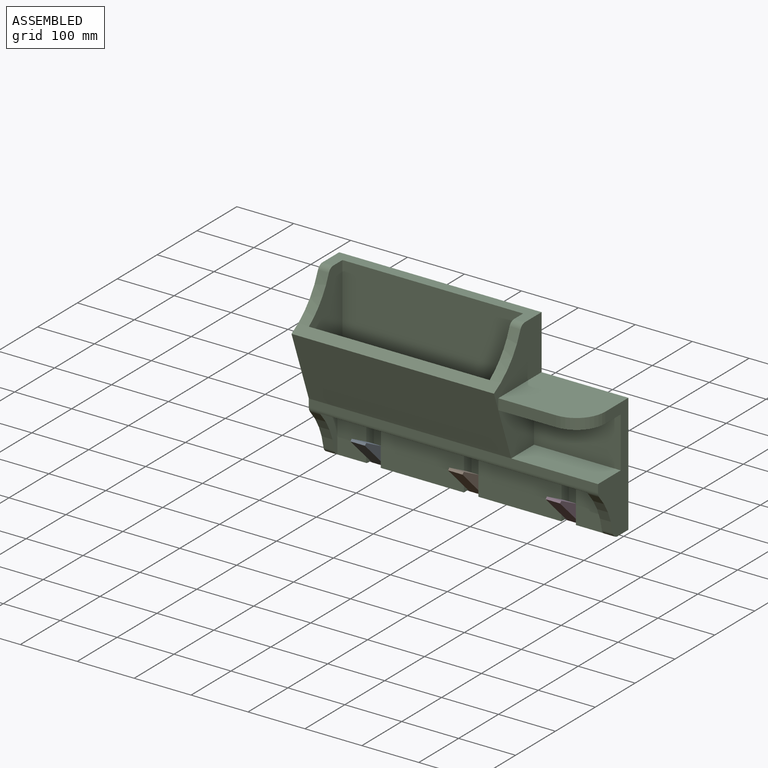
[diagram: assembled view]
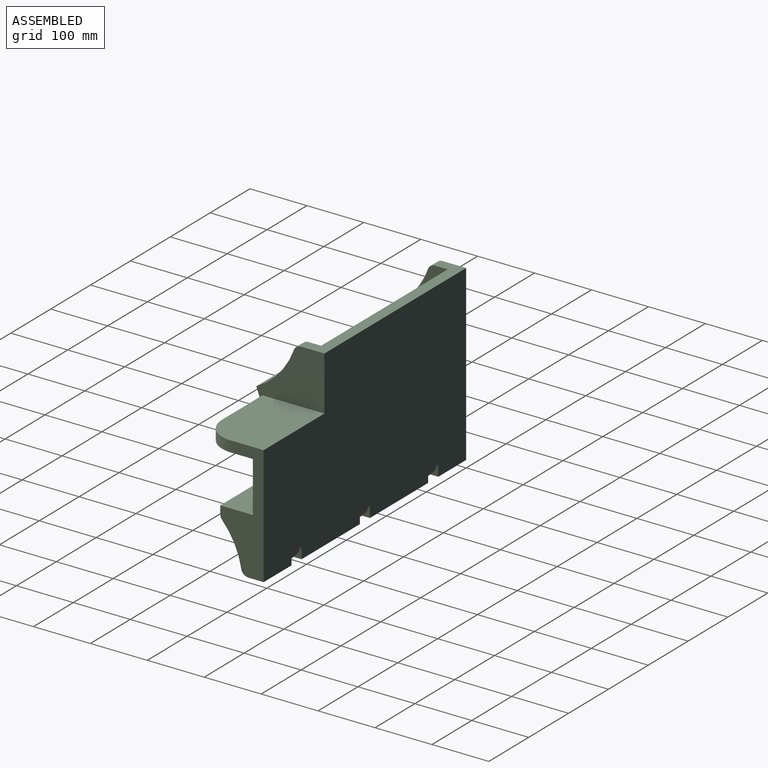
[diagram: assembled view, second angle]
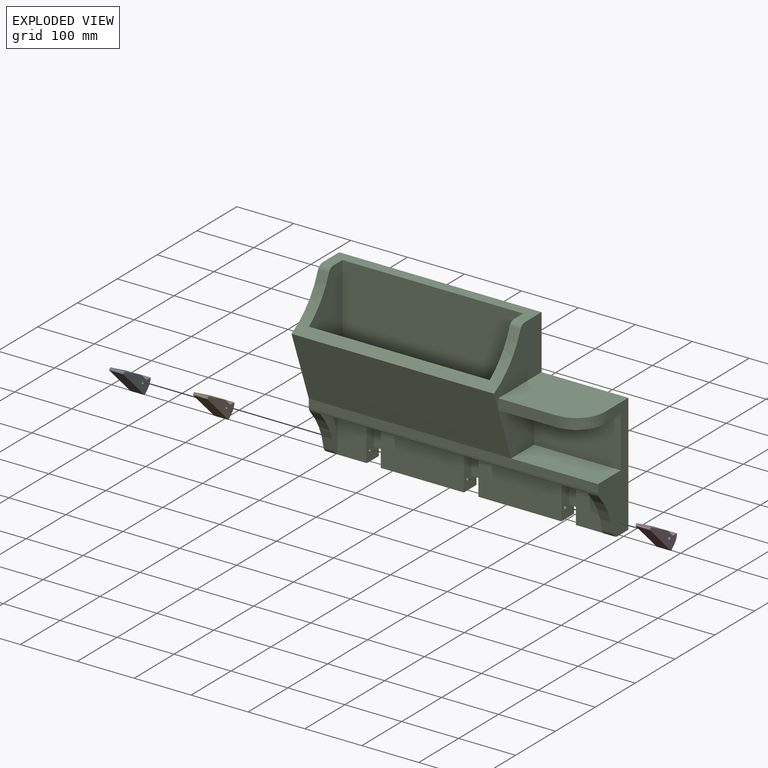
[diagram: exploded view]
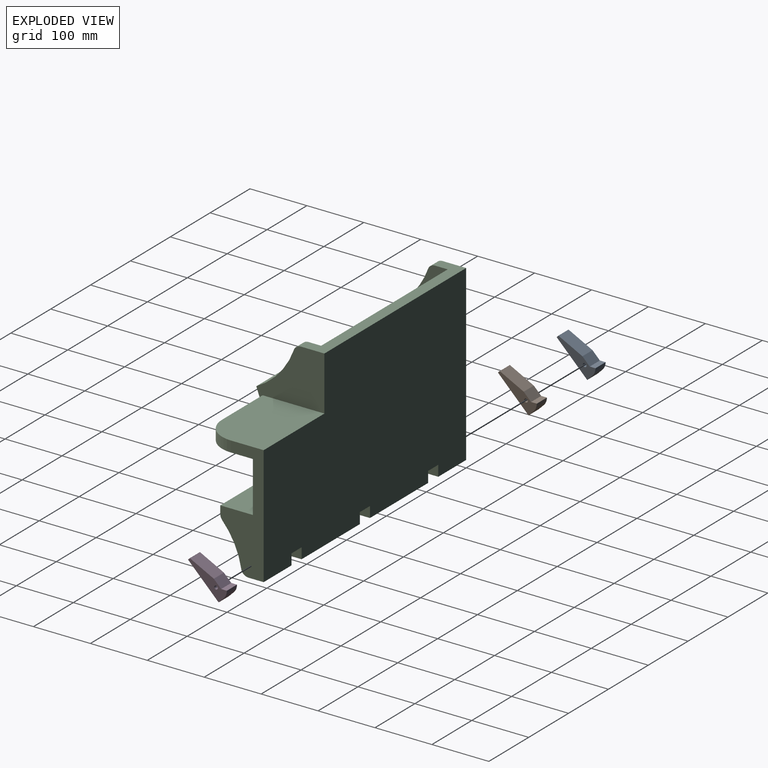
[diagram: exploded view, second angle]
ASSEMBLY  parts=4 mates=3
PART A: 10 faces, bbox 25.4x26.2x75.9 mm
  f0: plane 25.4x7.12mm, normal (0,0.71,0.71), area 255.8mm2, adj f1,f6,f8,f9
  f1: plane 25.4x18.22mm, normal (0,1,0), area 462.9mm2, adj f0,f2,f8,f9
  f2: plane 45.02x25.4mm, normal (0,0.95,0.31), area 1202.5mm2, adj f1,f3,f8,f9
  f3: plane 25.4x4.41mm, normal (0,0,1), area 112.1mm2, adj f2,f4,f8,f9
  f4: plane 75.95x25.4mm, normal (0,-1,0), area 1929mm2, adj f3,f5,f8,f9
  f5: plane 25.4x12.7mm, normal (0,0,-1), area 322.6mm2, adj f4,f6,f8,f9
  f6: cylinder r=19.05mm len=25.4mm, axis (-1,0,0), area 380mm2, adj f0,f5,f8,f9
  f7: cylinder r=3.17mm len=25.4mm, axis (-1,0,0), area 506.7mm2, adj f8,f9
  f8: plane 75.95x26.17mm, normal (1,0,0), area 1127.3mm2, adj f0,f1,f2,f3,f4,f5,f6,f7
  f9: plane 75.95x26.17mm, normal (-1,0,0), area 1127.3mm2, adj f0,f1,f2,f3,f4,f5,f6,f7
PART B: same geometry as A
PART C: 56 faces, bbox 508x119.6x304.8 mm
  f0: plane 469.9x82.55mm, normal (0,-1,0), area 32886mm2, adj f2,f3,f26,f27,f28,f30,f31,f33
  f1: plane 69.85x26.9mm, normal (0,0,-1), area 1878.9mm2, adj f4,f11,f36,f52
  f2: plane 146.05x31.75mm, normal (0,0,-1), area 4637.1mm2, adj f0,f4,f34,f37
  f3: plane 146.05x31.75mm, normal (0,0,-1), area 4637.1mm2, adj f0,f4,f30,f33
  f4: plane 508x304.8mm, normal (0,1,0), area 138870.7mm2, adj f1,f2,f3,f7,f9,f11,f20,f21
  f5: cylinder r=133.23mm len=68.42mm, axis (-1,0,0), area 1471mm2, adj f21,f28,f51,f53
  f6: plane 89.51x88.9mm, normal (1,0,0), area 6518.9mm2, adj f10,f17,f23,f25
  f7: plane 119.64x114.3mm, normal (1,0,0), area 7725.1mm2, adj f4,f8,f9,f10,f22,f24,f55
  f8: cylinder r=137.87mm len=355.6mm, axis (-1,0,0), area 10089.7mm2, adj f7,f10,f11,f14,f15,f16,f54,f55
  f9: plane 355.6x41.59mm, normal (0,0,1), area 7632.8mm2, adj f4,f7,f11,f13,f15,f16,f54,f55
  f10: plane 355.6x119.34mm, normal (0,-0.94,-0.34), area 45161.2mm2, adj f6,f7,f8,f11,f18
  f11: plane 304.8x119.64mm, normal (-1,0,0), area 23659.4mm2, adj f1,f4,f8,f9,f10,f18,f19,f51
  f12: plane 317.5x43.81mm, normal (0,0,1), area 13910mm2, adj f13,f14,f15,f16
  f13: plane 317.5x184.15mm, normal (0,-1,0), area 58467.6mm2, adj f9,f12,f15,f16
  f14: plane 317.5x110.45mm, normal (0,0.94,0.34), area 37316.9mm2, adj f8,f12,f15,f16
  f15: plane 184.15x84.01mm, normal (-1,0,0), area 10848.2mm2, adj f8,f9,f12,f13,f14,f55
  f16: plane 184.15x84.01mm, normal (1,0,0), area 10848.2mm2, adj f8,f9,f12,f13,f14,f54
  f17: plane 152.4x57.15mm, normal (0,0,1), area 8709.7mm2, adj f6,f18,f21,f25
  f18: plane 508x13.96mm, normal (0,-1,0), area 7093.3mm2, adj f10,f11,f17,f21,f51
  f19: cylinder r=133.23mm len=68.42mm, axis (-1,0,0), area 1471mm2, adj f11,f26,f51,f52
  f20: plane 69.85x26.9mm, normal (0,0,-1), area 1878.9mm2, adj f4,f21,f31,f53
  f21: plane 209.55x76.2mm, normal (1,0,0), area 8447.6mm2, adj f4,f5,f17,f18,f20,f22,f23,f25
  f22: plane 152.4x108.56mm, normal (0,0,1), area 15990.3mm2, adj f4,f7,f21,f24,f29
  f23: plane 152.4x89.51mm, normal (0,0,-1), area 13087mm2, adj f6,f21,f24,f25,f29
  f24: plane 101.6x19.05mm, normal (0,-1,0), area 1935.5mm2, adj f7,f22,f23,f29
  f25: plane 152.4x88.9mm, normal (0,-1,0), area 13548.4mm2, adj f6,f17,f21,f23
  f26: plane 81.59x43.39mm, normal (1,0,0), area 1584.6mm2, adj f0,f19,f27,f51,f52
  f27: plane 469.9x43.39mm, normal (0,0,-1), area 20387.4mm2, adj f0,f26,f28,f51
  f28: plane 81.59x43.39mm, normal (-1,0,0), area 1584.6mm2, adj f0,f5,f27,f51,f53
  f29: cylinder r=50.8mm len=50.8mm, axis (0,0,1), area 1520.1mm2, adj f21,f22,f23,f24
  f30: plane 76.2x31.75mm, normal (1,0,0), area 1661.9mm2, adj f0,f3,f4,f32,f39,f40,f48
  f31: plane 76.2x31.75mm, normal (-1,0,0), area 1660.3mm2, adj f0,f4,f20,f32,f39,f40,f49,f53
  f32: plane 25.4x12.7mm, normal (0,0,-1), area 322.6mm2, adj f4,f30,f31,f40
  f33: plane 76.2x31.75mm, normal (-1,0,0), area 1661.9mm2, adj f0,f3,f4,f35,f41,f42,f48
  f34: plane 76.2x31.75mm, normal (1,0,0), area 1661.9mm2, adj f0,f2,f4,f35,f41,f42,f45
  f35: plane 25.4x12.7mm, normal (0,0,-1), area 322.6mm2, adj f4,f33,f34,f42
  f36: plane 76.2x31.75mm, normal (1,0,0), area 1660.3mm2, adj f0,f1,f4,f38,f43,f44,f47,f52
  f37: plane 76.2x31.75mm, normal (-1,0,0), area 1661.9mm2, adj f0,f2,f4,f38,f43,f44,f45
  f38: plane 25.4x12.7mm, normal (0,0,-1), area 322.6mm2, adj f4,f36,f37,f44
  f39: plane 25.4x19.05mm, normal (0,0,-1), area 483.9mm2, adj f0,f30,f31,f40
  f40: plane 57.15x25.4mm, normal (0,-1,0), area 1451.6mm2, adj f30,f31,f32,f39
  f41: plane 25.4x19.05mm, normal (0,0,-1), area 483.9mm2, adj f0,f33,f34,f42
  f42: plane 57.15x25.4mm, normal (0,-1,0), area 1451.6mm2, adj f33,f34,f35,f41
  f43: plane 25.4x19.05mm, normal (0,0,-1), area 483.9mm2, adj f0,f36,f37,f44
  f44: plane 57.15x25.4mm, normal (0,-1,0), area 1451.6mm2, adj f36,f37,f38,f43
  f45: cylinder r=3.17mm len=146.05mm, axis (-1,0,0), area 2913.6mm2, adj f34,f37
  f46: plane 6.35x6.35mm, normal (1,0,0), area 31.7mm2, adj f47
  f47: cylinder r=3.17mm len=12.7mm, axis (-1,0,0), area 253.4mm2, adj f36,f46
  f48: cylinder r=3.17mm len=146.05mm, axis (-1,0,0), area 2913.6mm2, adj f30,f33
  f49: cylinder r=3.17mm len=12.7mm, axis (-1,0,0), area 253.4mm2, adj f31,f50
  f50: plane 6.35x6.35mm, normal (-1,0,0), area 31.7mm2, adj f49
  f51: cylinder r=12.7mm len=508mm, axis (-1,0,0), area 2819.4mm2, adj f5,f11,f18,f19,f21,f26,f27,f28
  f52: cylinder r=12.7mm len=69.85mm, axis (-1,0,0), area 593mm2, adj f0,f1,f11,f19,f26,f36
  f53: cylinder r=12.7mm len=69.85mm, axis (-1,0,0), area 593mm2, adj f0,f5,f20,f21,f28,f31
  f54: cylinder r=12.7mm len=19.05mm, axis (-1,0,0), area 296.1mm2, adj f8,f9,f11,f16
  f55: cylinder r=12.7mm len=19.05mm, axis (-1,0,0), area 296.1mm2, adj f7,f8,f9,f15
PART D: same geometry as A
PLACE A rot(axis=(1,0,0),45deg) t=(82.55,-125.5,47.66)mm
PLACE B rot(axis=(1,0,0),45deg) t=(254,-125.5,47.66)mm
PLACE C at identity fixed
PLACE D rot(axis=(1,0,0),45deg) t=(425.45,-125.5,47.66)mm
MATE revolute A.f6 <-> C.f45  axis (1,0,0) through (95.25,-22.23,-82.55)mm
MATE revolute B.f6 <-> C.f45  axis (1,0,0) through (266.7,-22.23,-82.55)mm
MATE revolute D.f6 <-> C.f45  axis (1,0,0) through (438.15,-22.23,-82.55)mm
